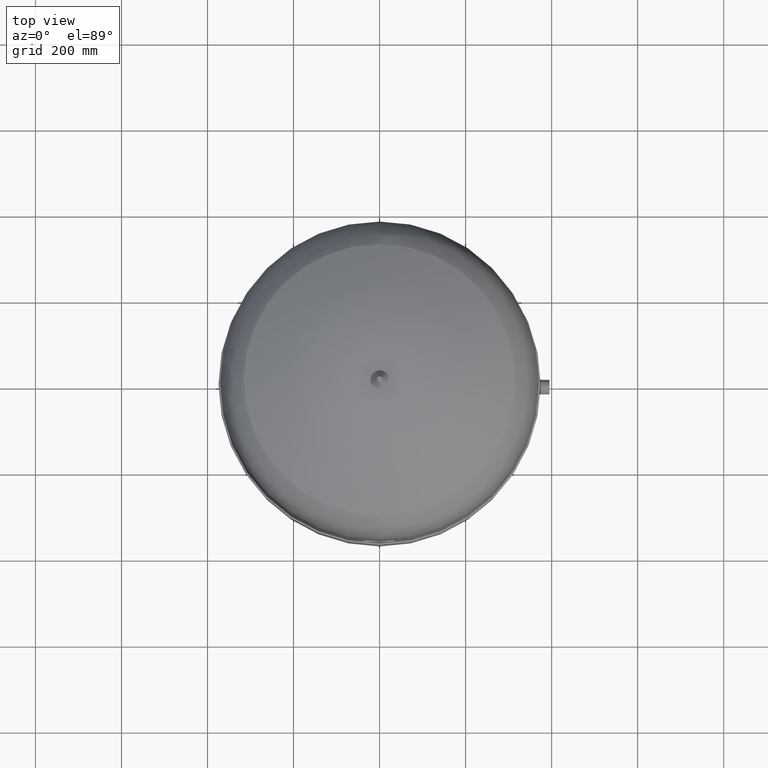
[diagram: clean part render]
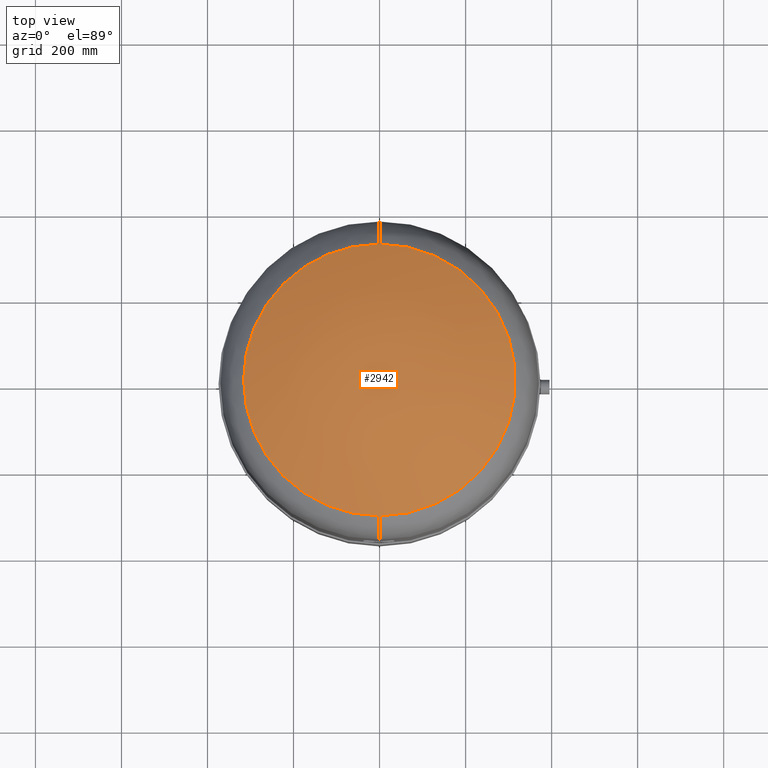
[diagram: same view with one face highlighted and labeled with its STEP entity id]
A machine part, top view. The second image highlights one B-rep face of the part: STEP entity #2942.
In plain terms, the highlighted face is a freeform B-spline surface patch.
Its self-contained STEP definition (entity closure, byte-faithful):
#2868=CARTESIAN_POINT('',(0.0,-315.931034482758610,1199.014494274920500));
#2869=VERTEX_POINT('',#2868);
#2887=CARTESIAN_POINT('',(-3.868912E-014,315.931034482758610,1199.014494274920300));
#2888=VERTEX_POINT('',#2887);
#2896=CARTESIAN_POINT('',(0.0,-1.671377E-014,1199.014494274920500));
#2897=DIRECTION('',(0.0,0.0,1.0));
#2898=DIRECTION('',(-1.0,0.0,0.0));
#2899=AXIS2_PLACEMENT_3D('',#2896,#2897,#2898);
#2900=CIRCLE('',#2899,315.931034482758610);
#2901=EDGE_CURVE('',#2869,#2888,#2900,.T.);
#2906=CARTESIAN_POINT('',(-267.538534572554340,315.931034482758550,1121.965625337801400));
#2907=CARTESIAN_POINT('',(-373.076793250796750,0.0,1290.0));
#2908=CARTESIAN_POINT('',(-267.538534572554340,-315.931034482758660,1121.965625337801400));
#2909=CARTESIAN_POINT('',(1.136868E-013,315.931034482758610,1290.0));
#2910=CARTESIAN_POINT('',(5.684342E-014,4.304395E-014,1524.320359700837800));
#2911=CARTESIAN_POINT('',(-5.684342E-014,-315.931034482758610,1290.0));
#2912=CARTESIAN_POINT('',(267.538534572554510,315.931034482758550,1121.965625337801400));
#2913=CARTESIAN_POINT('',(373.076793250796870,-6.310887E-030,1290.0));
#2914=CARTESIAN_POINT('',(267.538534572554340,-315.931034482758660,1121.965625337801400));
#2922=(BOUNDED_SURFACE()B_SPLINE_SURFACE(2,2,((#2906,#2909,#2912),(#2907,#2910,#2913),(#2908,#2911,#2914)),.UNSPECIFIED.,.F.,.F.,.U.)B_SPLINE_SURFACE_WITH_KNOTS((3,3),(3,3),(-0.560807789616945,0.560807789616945),(0.0,1.121615579233890),.UNSPECIFIED.)GEOMETRIC_REPRESENTATION_ITEM()RATIONAL_B_SPLINE_SURFACE(((1.0,0.846825747937576,1.0),(0.846825747937577,0.717113847370036,0.846825747937577),(1.0,0.846825747937576,1.0)))REPRESENTATION_ITEM('')SURFACE());
#2923=CARTESIAN_POINT('',(-315.931034482758610,-1.671377E-014,1199.014494274920500));
#2924=VERTEX_POINT('',#2923);
#2925=CARTESIAN_POINT('',(0.0,-1.671377E-014,1199.014494274920500));
#2926=DIRECTION('',(0.0,0.0,1.0));
#2927=DIRECTION('',(-1.0,0.0,0.0));
#2928=AXIS2_PLACEMENT_3D('',#2925,#2926,#2927);
#2929=CIRCLE('',#2928,315.931034482758610);
#2930=EDGE_CURVE('',#2924,#2869,#2929,.T.);
#2931=ORIENTED_EDGE('',*,*,#2930,.T.);
#2932=ORIENTED_EDGE('',*,*,#2901,.T.);
#2933=CARTESIAN_POINT('',(0.0,-1.671377E-014,1199.014494274920500));
#2934=DIRECTION('',(0.0,0.0,1.0));
#2935=DIRECTION('',(-1.0,0.0,0.0));
#2936=AXIS2_PLACEMENT_3D('',#2933,#2934,#2935);
#2937=CIRCLE('',#2936,315.931034482758610);
#2938=EDGE_CURVE('',#2888,#2924,#2937,.T.);
#2939=ORIENTED_EDGE('',*,*,#2938,.T.);
#2940=EDGE_LOOP('',(#2931,#2932,#2939));
#2941=FACE_OUTER_BOUND('',#2940,.T.);
#2942=ADVANCED_FACE('',(#2941),#2922,.T.);